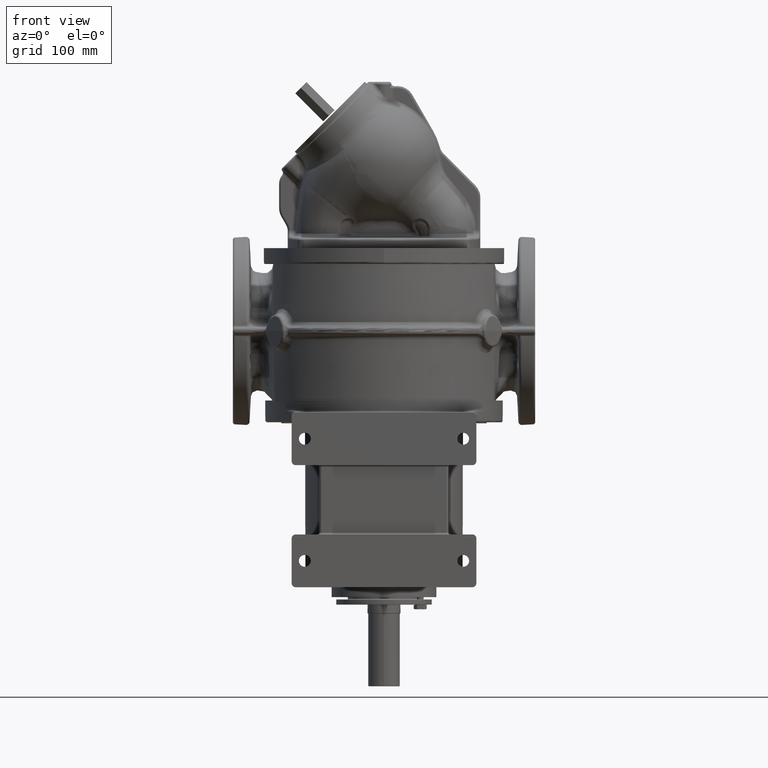
[diagram: clean part render]
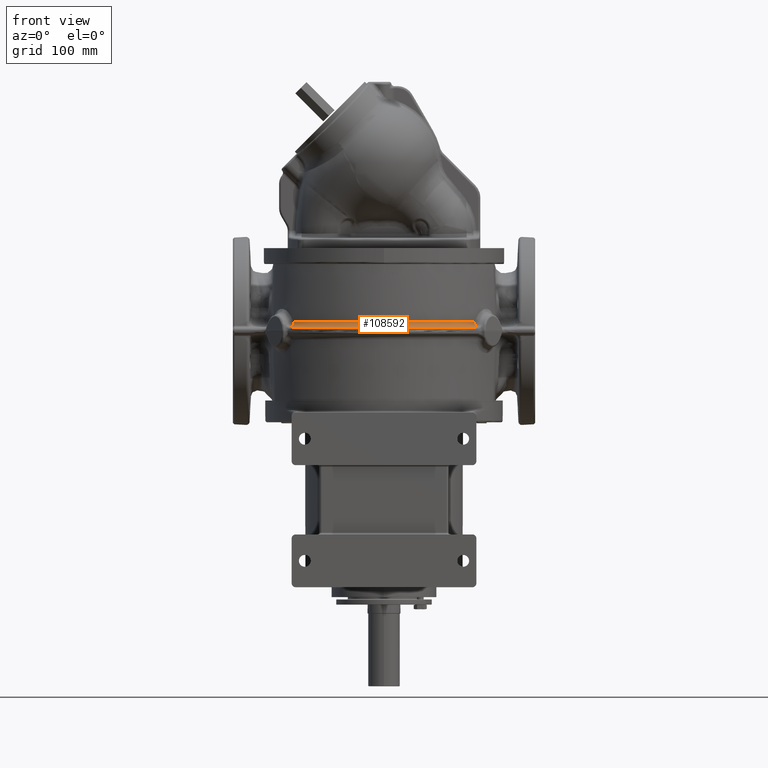
[diagram: same view with one face highlighted and labeled with its STEP entity id]
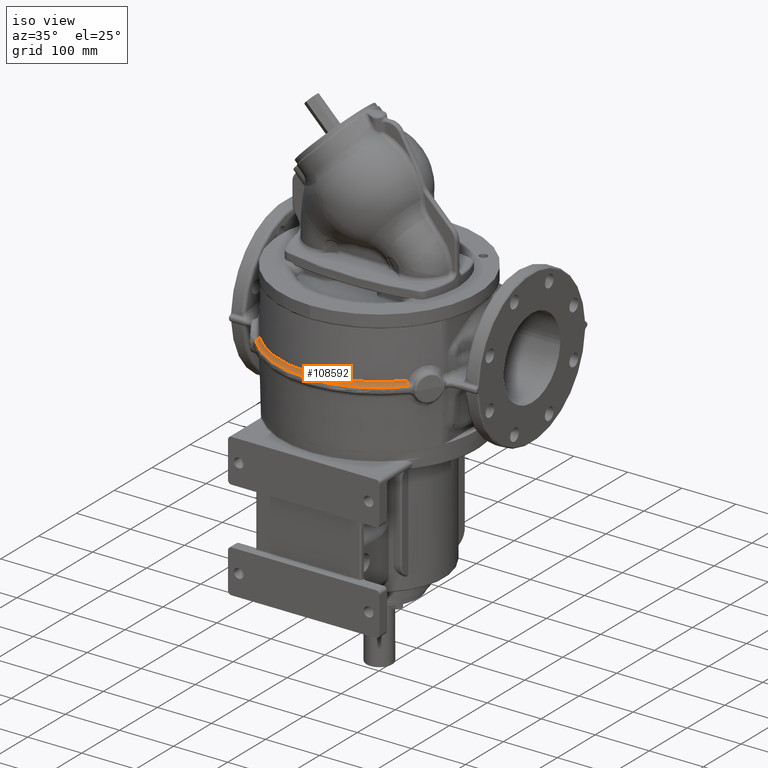
[diagram: same view with one face highlighted and labeled with its STEP entity id]
A machine part, front view. The second image highlights one B-rep face of the part: STEP entity #108592.
A second angle (iso view) of the same face is appended — the face is thin or edge-on in the first view.
In plain terms, the highlighted face is a freeform B-spline surface patch.
Its self-contained STEP definition (entity closure, byte-faithful):
#16138=CARTESIAN_POINT('',(1.370697317124E2,-1.208073383816E2,
1.309492199516E2));
#16147=CARTESIAN_POINT('',(-1.370697317100E2,-1.208073383843E2,
1.309492199509E2));
#16148=CARTESIAN_POINT('',(-1.363978214847E2,-1.215634289459E2,
1.309492127501E2));
#16149=CARTESIAN_POINT('',(-1.350414519589E2,-1.230645694003E2,
1.309492037074E2));
#16150=CARTESIAN_POINT('',(-1.329697115072E2,-1.252824869833E2,
1.309491985881E2));
#16151=CARTESIAN_POINT('',(-1.308614103834E2,-1.274659615623E2,
1.309491992841E2));
#16152=CARTESIAN_POINT('',(-1.287171470537E2,-1.296143510876E2,
1.309492028197E2));
#16153=CARTESIAN_POINT('',(-1.265375434012E2,-1.317270259575E2,
1.309492073035E2));
#16154=CARTESIAN_POINT('',(-1.243232306973E2,-1.338033683756E2,
1.309492115522E2));
#16155=CARTESIAN_POINT('',(-1.220748512586E2,-1.358427744529E2,
1.309492151556E2));
#16156=CARTESIAN_POINT('',(-1.197930615563E2,-1.378446502752E2,
1.309492185752E2));
#16157=CARTESIAN_POINT('',(-1.174785132483E2,-1.398084293309E2,
1.309492226564E2));
#16158=CARTESIAN_POINT('',(-1.151317656843E2,-1.417336397912E2,
1.309492260706E2));
#16159=CARTESIAN_POINT('',(-1.127533954402E2,-1.436198047958E2,
1.309492281496E2));
#16160=CARTESIAN_POINT('',(-1.103439748809E2,-1.454664612338E2,
1.309492285953E2));
#16161=CARTESIAN_POINT('',(-1.079041122981E2,-1.472731280450E2,
1.309492275536E2));
#16162=CARTESIAN_POINT('',(-1.054345418572E2,-1.490392483084E2,
1.309492256258E2));
#16163=CARTESIAN_POINT('',(-1.029359931935E2,-1.507642925907E2,
1.309492237598E2));
#16164=CARTESIAN_POINT('',(-1.004092135045E2,-1.524477416101E2,
1.309492236728E2));
#16165=CARTESIAN_POINT('',(-9.785494447904E1,-1.540891022949E2,
1.309492261486E2));
#16166=CARTESIAN_POINT('',(-9.527390323127E1,-1.556879171211E2,
1.309492290496E2));
#16167=CARTESIAN_POINT('',(-9.266681990714E1,-1.572437380462E2,
1.309492313015E2));
#16168=CARTESIAN_POINT('',(-9.003443710803E1,-1.587561277996E2,
1.309492322127E2));
#16169=CARTESIAN_POINT('',(-8.737748243150E1,-1.602246753725E2,
1.309492316473E2));
#16170=CARTESIAN_POINT('',(-8.469664865936E1,-1.616490034706E2,
1.309492300185E2));
#16171=CARTESIAN_POINT('',(-8.199264134541E1,-1.630287404530E2,
1.309492281425E2));
#16172=CARTESIAN_POINT('',(-7.926616489504E1,-1.643635279734E2,
1.309492278166E2));
#16173=CARTESIAN_POINT('',(-7.651794267206E1,-1.656530109964E2,
1.309492292719E2));
#16174=CARTESIAN_POINT('',(-7.374872228027E1,-1.668968371576E2,
1.309492307071E2));
#16175=CARTESIAN_POINT('',(-7.095925517911E1,-1.680946670660E2,
1.309492313288E2));
#16176=CARTESIAN_POINT('',(-6.815029713401E1,-1.692461738121E2,
1.309492307106E2));
#16177=CARTESIAN_POINT('',(-6.532262215990E1,-1.703510375731E2,
1.309492289549E2));
#16178=CARTESIAN_POINT('',(-6.247702109493E1,-1.714089475238E2,
1.309492266975E2));
#16179=CARTESIAN_POINT('',(-5.961428655026E1,-1.724196080332E2,
1.309492249272E2));
#16180=CARTESIAN_POINT('',(-5.673521731764E1,-1.733827368795E2,
1.309492256942E2));
#16181=CARTESIAN_POINT('',(-5.384060692383E1,-1.742980690342E2,
1.309492285012E2));
#16182=CARTESIAN_POINT('',(-5.093124923255E1,-1.751653540074E2,
1.309492314770E2));
#16183=CARTESIAN_POINT('',(-4.800794419213E1,-1.759843539003E2,
1.309492336915E2));
#16184=CARTESIAN_POINT('',(-4.507149670947E1,-1.767548439506E2,
1.309492346081E2));
#16185=CARTESIAN_POINT('',(-4.212271014854E1,-1.774766141514E2,
1.309492342217E2));
#16186=CARTESIAN_POINT('',(-3.916238847824E1,-1.781494682960E2,
1.309492330600E2));
#16187=CARTESIAN_POINT('',(-3.619133874644E1,-1.787732232934E2,
1.309492320385E2));
#16188=CARTESIAN_POINT('',(-3.321036878921E1,-1.793477095613E2,
1.309492330302E2));
#16189=CARTESIAN_POINT('',(-3.022029235526E1,-1.798727701273E2,
1.309492350243E2));
#16190=CARTESIAN_POINT('',(-2.722192831010E1,-1.803482609832E2,
1.309492365546E2));
#16191=CARTESIAN_POINT('',(-2.421609849404E1,-1.807740515552E2,
1.309492369003E2));
#16192=CARTESIAN_POINT('',(-2.120362724257E1,-1.811500248248E2,
1.309492357825E2));
#16193=CARTESIAN_POINT('',(-1.818534246807E1,-1.814760772736E2,
1.309492334423E2));
#16194=CARTESIAN_POINT('',(-1.516207359400E1,-1.817521192188E2,
1.309492306388E2));
#16195=CARTESIAN_POINT('',(-1.213465055007E1,-1.819780748749E2,
1.309492285758E2));
#16196=CARTESIAN_POINT('',(-9.103902999553E0,-1.821538823242E2,
1.309492291826E2));
#16197=CARTESIAN_POINT('',(-6.070659696204E0,-1.822794935598E2,
1.309492309219E2));
#16198=CARTESIAN_POINT('',(-3.035751553471E0,-1.823548741657E2,
1.309492324636E2));
#16199=CARTESIAN_POINT('',(-1.082630360039E-5,-1.823800034522E2,
1.309492330618E2));
#16200=CARTESIAN_POINT('',(3.035729534121E0,-1.823548745267E2,
1.309492324559E2));
#16201=CARTESIAN_POINT('',(6.070636748731E0,-1.822794943141E2,
1.309492309042E2));
#16202=CARTESIAN_POINT('',(9.103878733755E0,-1.821538835232E2,
1.309492291525E2));
#16203=CARTESIAN_POINT('',(1.213462473858E1,-1.819780765794E2,
1.309492285221E2));
#16204=CARTESIAN_POINT('',(1.516204618928E1,-1.817521214861E2,
1.309492305740E2));
#16205=CARTESIAN_POINT('',(1.818531371399E1,-1.814760801345E2,
1.309492333877E2));
#16206=CARTESIAN_POINT('',(2.120359764727E1,-1.811500282680E2,
1.309492357487E2));
#16207=CARTESIAN_POINT('',(2.421606885175E1,-1.807740555066E2,
1.309492368930E2));
#16208=CARTESIAN_POINT('',(2.722189959588E1,-1.803482652998E2,
1.309492365733E2));
#16209=CARTESIAN_POINT('',(3.022026521557E1,-1.798727746702E2,
1.309492350620E2));
#16210=CARTESIAN_POINT('',(3.321034359503E1,-1.793477142103E2,
1.309492330764E2));
#16211=CARTESIAN_POINT('',(3.619131557624E1,-1.787732279676E2,
1.309492320698E2));
#16212=CARTESIAN_POINT('',(3.916236712056E1,-1.781494729733E2,
1.309492330800E2));
#16213=CARTESIAN_POINT('',(4.212269028790E1,-1.774766188453E2,
1.309492342389E2));
#16214=CARTESIAN_POINT('',(4.507147792623E1,-1.767548487169E2,
1.309492346273E2));
#16215=CARTESIAN_POINT('',(4.800792592188E1,-1.759843588562E2,
1.309492337151E2));
#16216=CARTESIAN_POINT('',(5.093123095293E1,-1.751653592897E2,
1.309492315045E2));
#16217=CARTESIAN_POINT('',(5.384058841232E1,-1.742980747166E2,
1.309492285288E2));
#16218=CARTESIAN_POINT('',(5.673519858026E1,-1.733827429734E2,
1.309492257156E2));
#16219=CARTESIAN_POINT('',(5.961426786298E1,-1.724196144581E2,
1.309492249275E2));
#16220=CARTESIAN_POINT('',(6.247700286434E1,-1.714089541333E2,
1.309492266862E2));
#16221=CARTESIAN_POINT('',(6.532260446902E1,-1.703510443203E2,
1.309492289379E2));
#16222=CARTESIAN_POINT('',(6.815027981898E1,-1.692461807448E2,
1.309492306910E2));
#16223=CARTESIAN_POINT('',(7.095923779742E1,-1.680946743575E2,
1.309492313070E2));
#16224=CARTESIAN_POINT('',(7.374870412543E1,-1.668968451252E2,
1.309492306812E2));
#16225=CARTESIAN_POINT('',(7.651792319149E1,-1.656530199307E2,
1.309492292378E2));
#16226=CARTESIAN_POINT('',(7.926614363050E1,-1.643635381537E2,
1.309492277694E2));
#16227=CARTESIAN_POINT('',(8.199261791435E1,-1.630287521503E2,
1.309492280738E2));
#16228=CARTESIAN_POINT('',(8.469662272714E1,-1.616490169580E2,
1.309492299552E2));
#16229=CARTESIAN_POINT('',(8.737745424949E1,-1.602246906318E2,
1.309492316042E2));
#16230=CARTESIAN_POINT('',(9.003440735933E1,-1.587561445561E2,
1.309492321992E2));
#16231=CARTESIAN_POINT('',(9.266678984614E1,-1.572437556507E2,
1.309492313201E2));
#16232=CARTESIAN_POINT('',(9.527387441126E1,-1.556879346544E2,
1.309492290958E2));
#16233=CARTESIAN_POINT('',(9.785491772224E1,-1.540891191906E2,
1.309492262116E2));
#16234=CARTESIAN_POINT('',(1.004091891410E2,-1.524477575659E2,
1.309492237341E2));
#16235=CARTESIAN_POINT('',(1.029359709795E2,-1.507643076711E2,
1.309492237968E2));
#16236=CARTESIAN_POINT('',(1.054345218455E2,-1.490392623866E2,
1.309492256490E2));
#16237=CARTESIAN_POINT('',(1.079040945966E2,-1.472731409450E2,
1.309492275665E2));
#16238=CARTESIAN_POINT('',(1.103439597361E2,-1.454664726652E2,
1.309492286023E2));
#16239=CARTESIAN_POINT('',(1.127533830346E2,-1.436198144889E2,
1.309492281538E2));
#16240=CARTESIAN_POINT('',(1.151317555630E2,-1.417336479734E2,
1.309492260737E2));
#16241=CARTESIAN_POINT('',(1.174785051954E2,-1.398084360666E2,
1.309492226588E2));
#16242=CARTESIAN_POINT('',(1.197930553434E2,-1.378446556519E2,
1.309492185746E2));
#16243=CARTESIAN_POINT('',(1.220748468518E2,-1.358427784023E2,
1.309492151505E2));
#16244=CARTESIAN_POINT('',(1.243232281858E2,-1.338033707107E2,
1.309492115473E2));
#16245=CARTESIAN_POINT('',(1.265375426186E2,-1.317270267204E2,
1.309492073002E2));
#16246=CARTESIAN_POINT('',(1.287171476870E2,-1.296143504772E2,
1.309492028185E2));
#16247=CARTESIAN_POINT('',(1.308614119574E2,-1.274659599656E2,
1.309491992850E2));
#16248=CARTESIAN_POINT('',(1.329697134027E2,-1.252824849910E2,
1.309491985903E2));
#16249=CARTESIAN_POINT('',(1.350414534269E2,-1.230645677790E2,
1.309492037092E2));
#16250=CARTESIAN_POINT('',(1.363978220804E2,-1.215634283044E2,
1.309492127520E2));
#16251=CARTESIAN_POINT('',(1.370697317124E2,-1.208073383816E2,
1.309492199516E2));
#24702=CARTESIAN_POINT('',(1.408077788543E2,-1.241289357756E2,
1.231980652818E2));
#24703=CARTESIAN_POINT('',(1.401243757431E2,-1.248979634409E2,
1.231980511170E2));
#24704=CARTESIAN_POINT('',(1.387445676559E2,-1.264252439435E2,
1.231980288590E2));
#24705=CARTESIAN_POINT('',(1.366368156829E2,-1.286827320679E2,
1.231979913848E2));
#24706=CARTESIAN_POINT('',(1.344918467958E2,-1.309058899747E2,
1.231979622160E2));
#24707=CARTESIAN_POINT('',(1.323105400611E2,-1.330937872360E2,
1.231979455755E2));
#24708=CARTESIAN_POINT('',(1.300937950229E2,-1.352455040302E2,
1.231979504658E2));
#24709=CARTESIAN_POINT('',(1.278424689771E2,-1.373602062909E2,
1.231979819872E2));
#24710=CARTESIAN_POINT('',(1.255570998439E2,-1.394374322636E2,
1.231980231523E2));
#24711=CARTESIAN_POINT('',(1.232382763812E2,-1.414766535755E2,
1.231980578953E2));
#24712=CARTESIAN_POINT('',(1.208864690553E2,-1.434774427394E2,
1.231980705202E2));
#24713=CARTESIAN_POINT('',(1.185020457724E2,-1.454395113132E2,
1.231980727801E2));
#24714=CARTESIAN_POINT('',(1.160853240516E2,-1.473625709123E2,
1.231980776813E2));
#24715=CARTESIAN_POINT('',(1.136371573135E2,-1.492459397908E2,
1.231980829715E2));
#24716=CARTESIAN_POINT('',(1.111584965740E2,-1.510888968501E2,
1.231980849801E2));
#24717=CARTESIAN_POINT('',(1.086503256613E2,-1.528907288024E2,
1.231980821474E2));
#24718=CARTESIAN_POINT('',(1.061131919732E2,-1.546510527733E2,
1.231980745112E2));
#24719=CARTESIAN_POINT('',(1.035475714171E2,-1.563695181119E2,
1.231980623179E2));
#24720=CARTESIAN_POINT('',(1.009539305902E2,-1.580457642674E2,
1.231980521479E2));
#24721=CARTESIAN_POINT('',(9.833305353793E1,-1.596793199855E2,
1.231980459378E2));
#24722=CARTESIAN_POINT('',(9.568575777352E1,-1.612697048881E2,
1.231980417167E2));
#24723=CARTESIAN_POINT('',(9.301287666467E1,-1.628164382084E2,
1.231980396137E2));
#24724=CARTESIAN_POINT('',(9.031514706703E1,-1.643191026152E2,
1.231980404041E2));
#24725=CARTESIAN_POINT('',(8.759321527131E1,-1.657773295461E2,
1.231980453612E2));
#24726=CARTESIAN_POINT('',(8.484774155669E1,-1.671907349024E2,
1.231980582800E2));
#24727=CARTESIAN_POINT('',(8.207939150130E1,-1.685589353448E2,
1.231980773139E2));
#24728=CARTESIAN_POINT('',(7.928889692113E1,-1.698815790412E2,
1.231980830422E2));
#24729=CARTESIAN_POINT('',(7.647700261455E1,-1.711583486460E2,
1.231980800268E2));
#24730=CARTESIAN_POINT('',(7.364443102073E1,-1.723889302988E2,
1.231980704445E2));
#24731=CARTESIAN_POINT('',(7.079200414837E1,-1.735729675379E2,
1.231980583263E2));
#24732=CARTESIAN_POINT('',(6.792068430839E1,-1.747100550666E2,
1.231980487671E2));
#24733=CARTESIAN_POINT('',(6.503138274312E1,-1.757998227105E2,
1.231980467726E2));
#24734=CARTESIAN_POINT('',(6.212513393563E1,-1.768418643105E2,
1.231980625561E2));
#24735=CARTESIAN_POINT('',(5.920226411571E1,-1.778360767658E2,
1.231980813009E2));
#24736=CARTESIAN_POINT('',(5.626285305745E1,-1.787824362952E2,
1.231980869390E2));
#24737=CARTESIAN_POINT('',(5.330691270579E1,-1.796809147894E2,
1.231980840663E2));
#24738=CARTESIAN_POINT('',(5.033611696491E1,-1.805309627628E2,
1.231980748061E2));
#24739=CARTESIAN_POINT('',(4.735238879580E1,-1.813320373782E2,
1.231980630831E2));
#24740=CARTESIAN_POINT('',(4.435752893436E1,-1.820837106957E2,
1.231980536835E2));
#24741=CARTESIAN_POINT('',(4.135168739870E1,-1.827859954878E2,
1.231980515866E2));
#24742=CARTESIAN_POINT('',(3.833505849397E1,-1.834388392339E2,
1.231980654082E2));
#24743=CARTESIAN_POINT('',(3.530785131089E1,-1.840421596066E2,
1.231980937895E2));
#24744=CARTESIAN_POINT('',(3.227043390850E1,-1.845958891225E2,
1.231981156646E2));
#24745=CARTESIAN_POINT('',(2.922314842081E1,-1.850999630979E2,
1.231981313048E2));
#24746=CARTESIAN_POINT('',(2.616635990517E1,-1.855542699576E2,
1.231981380867E2));
#24747=CARTESIAN_POINT('',(2.310202016280E1,-1.859584744460E2,
1.231981356308E2));
#24748=CARTESIAN_POINT('',(2.003201887048E1,-1.863123276566E2,
1.231981245382E2));
#24749=CARTESIAN_POINT('',(1.695844697380E1,-1.866156375300E2,
1.231981063886E2));
#24750=CARTESIAN_POINT('',(1.388178577978E1,-1.868684180761E2,
1.231980849786E2));
#24751=CARTESIAN_POINT('',(1.080217292642E1,-1.870706695482E2,
1.231980612276E2));
#24752=CARTESIAN_POINT('',(7.719810368971E0,-1.872223595229E2,
1.231980543891E2));
#24753=CARTESIAN_POINT('',(4.634992385910E0,-1.873234972388E2,
1.231980709121E2));
#24754=CARTESIAN_POINT('',(1.548133390609E0,-1.873740884202E2,
1.231980969997E2));
#24755=CARTESIAN_POINT('',(-1.540489121716E0,-1.873741032412E2,
1.231981249861E2));
#24756=CARTESIAN_POINT('',(-4.630115816696E0,-1.873234833344E2,
1.231981470522E2));
#24757=CARTESIAN_POINT('',(-7.718830438860E0,-1.872222155611E2,
1.231981566878E2));
#24758=CARTESIAN_POINT('',(-1.080489567393E1,-1.870703518965E2,
1.231981492857E2));
#24759=CARTESIAN_POINT('',(-1.388655159895E1,-1.868680039712E2,
1.231981185718E2));
#24760=CARTESIAN_POINT('',(-1.696348883424E1,-1.866152437180E2,
1.231980738893E2));
#24761=CARTESIAN_POINT('',(-2.003536944788E1,-1.863121332889E2,
1.231980362008E2));
#24762=CARTESIAN_POINT('',(-2.310187172057E1,-1.859586873855E2,
1.231980296407E2));
#24763=CARTESIAN_POINT('',(-2.616257648551E1,-1.855549649220E2,
1.231980486879E2));
#24764=CARTESIAN_POINT('',(-2.921698973482E1,-1.851010337988E2,
1.231980780478E2));
#24765=CARTESIAN_POINT('',(-3.226476138118E1,-1.845969052020E2,
1.231981058709E2));
#24766=CARTESIAN_POINT('',(-3.530451911432E1,-1.840427550870E2,
1.231981213525E2));
#24767=CARTESIAN_POINT('',(-3.833463978012E1,-1.834388451581E2,
1.231981119570E2));
#24768=CARTESIAN_POINT('',(-4.135345569684E1,-1.827855422539E2,
1.231980824557E2));
#24769=CARTESIAN_POINT('',(-4.436037058168E1,-1.820830348772E2,
1.231980484933E2));
#24770=CARTESIAN_POINT('',(-4.735504200990E1,-1.813314240765E2,
1.231980235781E2));
#24771=CARTESIAN_POINT('',(-5.033709707073E1,-1.805307803324E2,
1.231980260341E2));
#24772=CARTESIAN_POINT('',(-5.330577696858E1,-1.796813164316E2,
1.231980466907E2));
#24773=CARTESIAN_POINT('',(-5.626023499992E1,-1.787832845139E2,
1.231980711320E2));
#24774=CARTESIAN_POINT('',(-5.919964894826E1,-1.778369310761E2,
1.231980880967E2));
#24775=CARTESIAN_POINT('',(-6.212318811908E1,-1.768425026E2,1.231980840441E2));
#24776=CARTESIAN_POINT('',(-6.503005985501E1,-1.758002745701E2,
1.231980640396E2));
#24777=CARTESIAN_POINT('',(-6.791947798694E1,-1.747105377216E2,
1.231980411720E2));
#24778=CARTESIAN_POINT('',(-7.079065454816E1,-1.735735800284E2,
1.231980279904E2));
#24779=CARTESIAN_POINT('',(-7.364280332855E1,-1.723896931249E2,
1.231980374494E2));
#24780=CARTESIAN_POINT('',(-7.647516730716E1,-1.711592152865E2,
1.231980567887E2));
#24781=CARTESIAN_POINT('',(-7.928699022502E1,-1.698824824100E2,
1.231980749220E2));
#24782=CARTESIAN_POINT('',(-8.207751081259E1,-1.685598353396E2,
1.231980822473E2));
#24783=CARTESIAN_POINT('',(-8.484599665024E1,-1.671915946885E2,
1.231980676784E2));
#24784=CARTESIAN_POINT('',(-8.759175058153E1,-1.657781094678E2,
1.231980413442E2));
#24785=CARTESIAN_POINT('',(-9.031407539753E1,-1.643197366417E2,
1.231980203524E2));
#24786=CARTESIAN_POINT('',(-9.301226206752E1,-1.628168381093E2,
1.231980188907E2));
#24787=CARTESIAN_POINT('',(-9.568550544994E1,-1.612698867923E2,
1.231980285460E2));
#24788=CARTESIAN_POINT('',(-9.833301059602E1,-1.596793538180E2,
1.231980433948E2));
#24789=CARTESIAN_POINT('',(-1.009539850764E2,-1.580457173664E2,
1.231980577791E2));
#24790=CARTESIAN_POINT('',(-1.035477248884E2,-1.563694058606E2,
1.231980675701E2));
#24791=CARTESIAN_POINT('',(-1.061135227815E2,-1.546508453460E2,
1.231980674387E2));
#24792=CARTESIAN_POINT('',(-1.086507029161E2,-1.528904858786E2,
1.231980723440E2));
#24793=CARTESIAN_POINT('',(-1.111587022743E2,-1.510887579426E2,
1.231980791664E2));
#24794=CARTESIAN_POINT('',(-1.136369746690E2,-1.492460721680E2,
1.231980838982E2));
#24795=CARTESIAN_POINT('',(-1.160849111314E2,-1.473628746763E2,
1.231980846961E2));
#24796=CARTESIAN_POINT('',(-1.185016304164E2,-1.454398281710E2,
1.231980805600E2));
#24797=CARTESIAN_POINT('',(-1.208862358488E2,-1.434776308701E2,
1.231980736201E2));
#24798=CARTESIAN_POINT('',(-1.232380851580E2,-1.414768123029E2,
1.231980602642E2));
#24799=CARTESIAN_POINT('',(-1.255568979252E2,-1.394376064003E2,
1.231980253586E2));
#24800=CARTESIAN_POINT('',(-1.278423043169E2,-1.373603533069E2,
1.231979838481E2));
#24801=CARTESIAN_POINT('',(-1.300936672024E2,-1.352456261288E2,
1.231979501721E2));
#24802=CARTESIAN_POINT('',(-1.323103579181E2,-1.330939805886E2,
1.231979403286E2));
#24803=CARTESIAN_POINT('',(-1.344916245457E2,-1.309061312558E2,
1.231979568720E2));
#24804=CARTESIAN_POINT('',(-1.366365852311E2,-1.286829851779E2,
1.231979878284E2));
#24805=CARTESIAN_POINT('',(-1.387443835867E2,-1.264254485195E2,
1.231980276795E2));
#24806=CARTESIAN_POINT('',(-1.401242909385E2,-1.248980589032E2,
1.231980512166E2));
#24807=CARTESIAN_POINT('',(-1.408077494179E2,-1.241289689320E2,
1.231980652707E2));
#24809=CARTESIAN_POINT('',(-1.437931145376E2,-1.267820729235E2,
1.312633386271E2));
#24810=DIRECTION('',(6.642646417330E-1,-7.474974820983E-1,-1.171910529167E-7));
#24811=DIRECTION('',(3.317157475E-1,2.947797851727E-1,-8.961414738277E-1));
#24812=AXIS2_PLACEMENT_3D('',#24809,#24810,#24811);
#24861=CARTESIAN_POINT('',(1.408077788543E2,-1.241289357756E2,
1.231980652818E2));
#24863=CARTESIAN_POINT('',(1.408077788543E2,-1.241289357756E2,
1.231980652818E2));
#24864=CARTESIAN_POINT('',(1.407380226228E2,-1.240669432307E2,
1.232442782762E2));
#24865=CARTESIAN_POINT('',(1.405996081537E2,-1.239441389901E2,
1.233399436344E2));
#24866=CARTESIAN_POINT('',(1.403960264475E2,-1.237631339344E2,
1.234929885482E2));
#24867=CARTESIAN_POINT('',(1.401964856496E2,-1.235858250746E2,
1.236553953631E2));
#24868=CARTESIAN_POINT('',(1.400012916426E2,-1.234123519023E2,
1.238269685587E2));
#24869=CARTESIAN_POINT('',(1.398106620514E2,-1.232429433215E2,
1.240075013723E2));
#24870=CARTESIAN_POINT('',(1.396248312472E2,-1.230777981401E2,
1.241967762973E2));
#24871=CARTESIAN_POINT('',(1.394440218599E2,-1.229171167795E2,
1.243945652792E2));
#24872=CARTESIAN_POINT('',(1.392684520665E2,-1.227610924703E2,
1.246006300086E2));
#24873=CARTESIAN_POINT('',(1.390983332998E2,-1.226099133029E2,
1.248147222136E2));
#24874=CARTESIAN_POINT('',(1.389338705427E2,-1.224637613995E2,
1.250365839508E2));
#24875=CARTESIAN_POINT('',(1.387752619330E2,-1.223228128589E2,
1.252659479165E2));
#24876=CARTESIAN_POINT('',(1.386226985717E2,-1.221872374980E2,
1.255025377649E2));
#24877=CARTESIAN_POINT('',(1.384763642786E2,-1.220571986598E2,
1.257460684418E2));
#24878=CARTESIAN_POINT('',(1.383364353699E2,-1.219328530139E2,
1.259962465309E2));
#24879=CARTESIAN_POINT('',(1.382030804471E2,-1.218143503667E2,
1.262527706068E2));
#24880=CARTESIAN_POINT('',(1.380764601971E2,-1.217018334757E2,
1.265153316006E2));
#24881=CARTESIAN_POINT('',(1.379567271947E2,-1.215954378847E2,
1.267836131694E2));
#24882=CARTESIAN_POINT('',(1.378440257191E2,-1.214952917594E2,
1.270572920783E2));
#24883=CARTESIAN_POINT('',(1.377384915806E2,-1.214015157335E2,
1.273360385888E2));
#24884=CARTESIAN_POINT('',(1.376402519582E2,-1.213142227610E2,
1.276195168565E2));
#24885=CARTESIAN_POINT('',(1.375494252454E2,-1.212335179814E2,
1.279073853360E2));
#24886=CARTESIAN_POINT('',(1.374661209108E2,-1.211594985889E2,
1.281992971927E2));
#24887=CARTESIAN_POINT('',(1.373904393692E2,-1.210922537123E2,
1.284949007203E2));
#24888=CARTESIAN_POINT('',(1.373224718539E2,-1.210318643152E2,
1.287938397647E2));
#24889=CARTESIAN_POINT('',(1.372623003106E2,-1.209784030940E2,
1.290957541532E2));
#24890=CARTESIAN_POINT('',(1.372099972590E2,-1.209319344351E2,
1.294002801280E2));
#24891=CARTESIAN_POINT('',(1.371656257539E2,-1.208925142829E2,
1.297070507848E2));
#24892=CARTESIAN_POINT('',(1.371292393162E2,-1.208601900641E2,
1.300156965151E2));
#24893=CARTESIAN_POINT('',(1.371008818591E2,-1.208350006415E2,
1.303258454508E2));
#24894=CARTESIAN_POINT('',(1.370805876657E2,-1.208169762326E2,
1.306371239135E2));
#24895=CARTESIAN_POINT('',(1.370724500450E2,-1.208097510778E2,
1.308451458782E2));
#24896=CARTESIAN_POINT('',(1.370697317124E2,-1.208073383816E2,
1.309492199516E2));
#67698=VERTEX_POINT('',#16138);
#67699=VERTEX_POINT('',#16147);
#67718=VERTEX_POINT('',#24861);
#67721=VERTEX_POINT('',#24807);
#108511=CARTESIAN_POINT('',(-1.430328653555E2,-1.218475825554E2,
1.231139056128E2));
#108512=CARTESIAN_POINT('',(-1.423415423586E2,-1.226525592139E2,
1.231138895965E2));
#108513=CARTESIAN_POINT('',(-1.362712501623E2,-1.296007968552E2,
1.231138027787E2));
#108514=CARTESIAN_POINT('',(-1.238647938075E2,-1.418574445789E2,
1.231138918538E2));
#108515=CARTESIAN_POINT('',(-1.043141381301E2,-1.566988646685E2,
1.231138608702E2));
#108516=CARTESIAN_POINT('',(-8.301028603032E1,-1.688813520924E2,
1.231138745764E2));
#108517=CARTESIAN_POINT('',(-6.030965776748E1,-1.782014410444E2,
1.231138605934E2));
#108518=CARTESIAN_POINT('',(-3.659262127021E1,-1.845030895404E2,
1.231138752825E2));
#108519=CARTESIAN_POINT('',(-1.225728575571E1,-1.876800883389E2,
1.231138655353E2));
#108520=CARTESIAN_POINT('',(1.228257297717E1,-1.876784499603E2,
1.231138654203E2));
#108521=CARTESIAN_POINT('',(3.661531945816E1,-1.844984649909E2,
1.231138753558E2));
#108522=CARTESIAN_POINT('',(6.033209673358E1,-1.781939191924E2,
1.231138606148E2));
#108523=CARTESIAN_POINT('',(8.303135259977E1,-1.688711984535E2,
1.231138744626E2));
#108524=CARTESIAN_POINT('',(1.043308815534E2,-1.566873358829E2,
1.231138609922E2));
#108525=CARTESIAN_POINT('',(1.238730060827E2,-1.418496197601E2,
1.231138917793E2));
#108526=CARTESIAN_POINT('',(1.362731698256E2,-1.295985757578E2,
1.231138028134E2));
#108527=CARTESIAN_POINT('',(1.423412569122E2,-1.226528858167E2,
1.231138895920E2));
#108528=CARTESIAN_POINT('',(1.430324413732E2,-1.218480760363E2,
1.231139056022E2));
#108529=CARTESIAN_POINT('',(-1.405973966241E2,-1.197558429753E2,
1.246184496881E2));
#108530=CARTESIAN_POINT('',(-1.399178498612E2,-1.205471072901E2,
1.246184347063E2));
#108531=CARTESIAN_POINT('',(-1.339509543876E2,-1.273769945835E2,
1.246183497293E2));
#108532=CARTESIAN_POINT('',(-1.217557097618E2,-1.394249891632E2,
1.246184394951E2));
#108533=CARTESIAN_POINT('',(-1.025379534765E2,-1.540136910579E2,
1.246184108419E2));
#108534=CARTESIAN_POINT('',(-8.159685523009E1,-1.659887424576E2,
1.246184260170E2));
#108535=CARTESIAN_POINT('',(-5.928275027720E1,-1.751501393725E2,
1.246184132363E2));
#108536=CARTESIAN_POINT('',(-3.596954603648E1,-1.813444883175E2,
1.246184287023E2));
#108537=CARTESIAN_POINT('',(-1.204858475276E1,-1.844673910384E2,
1.246184193487E2));
#108538=CARTESIAN_POINT('',(1.207344135340E1,-1.844657805669E2,
1.246184192335E2));
#108539=CARTESIAN_POINT('',(3.599185784355E1,-1.813399424880E2,
1.246184287750E2));
#108540=CARTESIAN_POINT('',(5.930480708704E1,-1.751427456226E2,
1.246184132568E2));
#108541=CARTESIAN_POINT('',(8.161756314689E1,-1.659787616835E2,
1.246184259017E2));
#108542=CARTESIAN_POINT('',(1.025544117865E2,-1.540023585855E2,
1.246184109626E2));
#108543=CARTESIAN_POINT('',(1.217637822066E2,-1.394172975744E2,
1.246184394187E2));
#108544=CARTESIAN_POINT('',(1.339528413362E2,-1.273748113374E2,
1.246183497659E2));
#108545=CARTESIAN_POINT('',(1.399175692819E2,-1.205474283242E2,
1.246184347013E2));
#108546=CARTESIAN_POINT('',(1.405969798714E2,-1.197563280415E2,
1.246184496770E2));
#108547=CARTESIAN_POINT('',(-1.391392443185E2,-1.185035221811E2,
1.275977134562E2));
#108548=CARTESIAN_POINT('',(-1.384667549644E2,-1.192865686532E2,
1.275977002792E2));
#108549=CARTESIAN_POINT('',(-1.325618149413E2,-1.260455411120E2,
1.275976175244E2));
#108550=CARTESIAN_POINT('',(-1.204929738675E2,-1.379686750907E2,
1.275977064423E2));
#108551=CARTESIAN_POINT('',(-1.014745348598E2,-1.524060591262E2,
1.275976796601E2));
#108552=CARTESIAN_POINT('',(-8.075063130964E1,-1.642569145082E2,
1.275976955872E2));
#108553=CARTESIAN_POINT('',(-5.866793262278E1,-1.733233061050E2,
1.275976835606E2));
#108554=CARTESIAN_POINT('',(-3.559650090139E1,-1.794534142618E2,
1.275976994825E2));
#108555=CARTESIAN_POINT('',(-1.192364341282E1,-1.825439284973E2,
1.275976903669E2));
#108556=CARTESIAN_POINT('',(1.194824212850E1,-1.825423347480E2,
1.275976902515E2));
#108557=CARTESIAN_POINT('',(3.561858152914E1,-1.794489155297E2,
1.275976995548E2));
#108558=CARTESIAN_POINT('',(5.868976051692E1,-1.733159890867E2,
1.275976835805E2));
#108559=CARTESIAN_POINT('',(8.077112457270E1,-1.642470371962E2,
1.275976954710E2));
#108560=CARTESIAN_POINT('',(1.014908224438E2,-1.523948442017E2,
1.275976797804E2));
#108561=CARTESIAN_POINT('',(1.205009625978E2,-1.379610632605E2,
1.275977063637E2));
#108562=CARTESIAN_POINT('',(1.325636822642E2,-1.260433805729E2,
1.275976175649E2));
#108563=CARTESIAN_POINT('',(1.384664773083E2,-1.192868863425E2,
1.275977002730E2));
#108564=CARTESIAN_POINT('',(1.391388319085E2,-1.185040021924E2,
1.275977134442E2));
#108565=CARTESIAN_POINT('',(-1.391032095657E2,-1.184726335597E2,
1.311428893278E2));
#108566=CARTESIAN_POINT('',(-1.384309059723E2,-1.192554634964E2,
1.311428781751E2));
#108567=CARTESIAN_POINT('',(-1.325275809676E2,-1.260125888039E2,
1.311427973459E2));
#108568=CARTESIAN_POINT('',(-1.204617765789E2,-1.379327427459E2,
1.311428841362E2));
#108569=CARTESIAN_POINT('',(-1.014482721241E2,-1.523663679164E2,
1.311428581947E2));
#108570=CARTESIAN_POINT('',(-8.072975009755E1,-1.642141525810E2,
1.311428739276E2));
#108571=CARTESIAN_POINT('',(-5.865275145803E1,-1.732782064146E2,
1.311428619766E2));
#108572=CARTESIAN_POINT('',(-3.558728117693E1,-1.794067288357E2,
1.311428778946E2));
#108573=CARTESIAN_POINT('',(-1.192057438613E1,-1.824964421026E2,
1.311428687886E2));
#108574=CARTESIAN_POINT('',(1.194516661906E1,-1.824948487895E2,
1.311428686733E2));
#108575=CARTESIAN_POINT('',(3.560935634686E1,-1.794022312117E2,
1.311428779669E2));
#108576=CARTESIAN_POINT('',(5.867457350647E1,-1.732708913510E2,
1.311428619966E2));
#108577=CARTESIAN_POINT('',(8.075023818469E1,-1.642042777680E2,
1.311428738112E2));
#108578=CARTESIAN_POINT('',(1.014645554484E2,-1.523551559173E2,
1.311428583156E2));
#108579=CARTESIAN_POINT('',(1.204697632471E2,-1.379251328729E2,
1.311428840557E2));
#108580=CARTESIAN_POINT('',(1.325294477402E2,-1.260104289008E2,
1.311427973912E2));
#108581=CARTESIAN_POINT('',(1.384306284040E2,-1.192557810852E2,
1.311428781675E2));
#108582=CARTESIAN_POINT('',(1.391027972871E2,-1.184731134179E2,
1.311428893145E2));
#108583=(BOUNDED_SURFACE()B_SPLINE_SURFACE(3,3,((#108511,#108512,#108513,
#108514,#108515,#108516,#108517,#108518,#108519,#108520,#108521,#108522,#108523,
#108524,#108525,#108526,#108527,#108528),(#108529,#108530,#108531,#108532,
#108533,#108534,#108535,#108536,#108537,#108538,#108539,#108540,#108541,#108542,
#108543,#108544,#108545,#108546),(#108547,#108548,#108549,#108550,#108551,
#108552,#108553,#108554,#108555,#108556,#108557,#108558,#108559,#108560,#108561,
#108562,#108563,#108564),(#108565,#108566,#108567,#108568,#108569,#108570,
#108571,#108572,#108573,#108574,#108575,#108576,#108577,#108578,#108579,#108580,
#108581,#108582)),.UNSPECIFIED.,.F.,.F.,.F.)B_SPLINE_SURFACE_WITH_KNOTS((4,4),
(4,1,1,1,1,1,1,1,1,1,1,1,1,1,1,4),(0.E0,1.E0),(-1.000591669783E-2,0.E0,
7.698306348752E-2,1.539198143191E-1,2.308261360323E-1,3.077374347754E-1,
3.846656911656E-1,4.615746774032E-1,5.385043184134E-1,6.154140998185E-1,
6.923209981902E-1,7.692579690408E-1,8.461568979255E-1,9.230466294496E-1,1.E0,
1.010003875719E0),.UNSPECIFIED.)GEOMETRIC_REPRESENTATION_ITEM()RATIONAL_B_SPLINE_SURFACE(((1.082556972937E0,1.082556972937E0,1.082556972937E0,1.082556972937E0,
1.082556972937E0,1.082556972937E0,1.082556972937E0,1.082556972937E0,
1.082556972937E0,1.082556972937E0,1.082556972937E0,1.082556972937E0,
1.082556972937E0,1.082556972937E0,1.082556972937E0,1.082556972937E0,
1.082556972937E0,1.082556972937E0),(9.724810090209E-1,9.724810090209E-1,
9.724810090209E-1,9.724810090209E-1,9.724810090209E-1,9.724810090209E-1,
9.724810090209E-1,9.724810090209E-1,9.724810090209E-1,9.724810090209E-1,
9.724810090209E-1,9.724810090209E-1,9.724810090209E-1,9.724810090209E-1,
9.724810090209E-1,9.724810090209E-1,9.724810090209E-1,9.724810090209E-1),(
9.724810090209E-1,9.724810090209E-1,9.724810090209E-1,9.724810090209E-1,
9.724810090209E-1,9.724810090209E-1,9.724810090209E-1,9.724810090209E-1,
9.724810090209E-1,9.724810090209E-1,9.724810090209E-1,9.724810090209E-1,
9.724810090209E-1,9.724810090209E-1,9.724810090209E-1,9.724810090209E-1,
9.724810090209E-1,9.724810090209E-1),(1.082556972937E0,1.082556972937E0,
1.082556972937E0,1.082556972937E0,1.082556972937E0,1.082556972937E0,
1.082556972937E0,1.082556972937E0,1.082556972937E0,1.082556972937E0,
1.082556972937E0,1.082556972937E0,1.082556972937E0,1.082556972937E0,
1.082556972937E0,1.082556972937E0,1.082556972937E0,1.082556972937E0)))REPRESENTATION_ITEM('')SURFACE());
#108585=ORIENTED_EDGE('',*,*,#108584,.T.);
#108586=ORIENTED_EDGE('',*,*,#108506,.T.);
#108587=ORIENTED_EDGE('',*,*,#99316,.T.);
#108589=ORIENTED_EDGE('',*,*,#108588,.F.);
#108590=EDGE_LOOP('',(#108585,#108586,#108587,#108589));
#108591=FACE_OUTER_BOUND('',#108590,.F.);
#108592=ADVANCED_FACE('',(#108591),#108583,.F.);
#16252=B_SPLINE_CURVE_WITH_KNOTS('',3,(#16147,#16148,#16149,#16150,#16151,
#16152,#16153,#16154,#16155,#16156,#16157,#16158,#16159,#16160,#16161,#16162,
#16163,#16164,#16165,#16166,#16167,#16168,#16169,#16170,#16171,#16172,#16173,
#16174,#16175,#16176,#16177,#16178,#16179,#16180,#16181,#16182,#16183,#16184,
#16185,#16186,#16187,#16188,#16189,#16190,#16191,#16192,#16193,#16194,#16195,
#16196,#16197,#16198,#16199,#16200,#16201,#16202,#16203,#16204,#16205,#16206,
#16207,#16208,#16209,#16210,#16211,#16212,#16213,#16214,#16215,#16216,#16217,
#16218,#16219,#16220,#16221,#16222,#16223,#16224,#16225,#16226,#16227,#16228,
#16229,#16230,#16231,#16232,#16233,#16234,#16235,#16236,#16237,#16238,#16239,
#16240,#16241,#16242,#16243,#16244,#16245,#16246,#16247,#16248,#16249,#16250,
#16251),.UNSPECIFIED.,.F.,.F.,(4,1,1,1,1,1,1,1,1,1,1,1,1,1,1,1,1,1,1,1,1,1,1,1,
1,1,1,1,1,1,1,1,1,1,1,1,1,1,1,1,1,1,1,1,1,1,1,1,1,1,1,1,1,1,1,1,1,1,1,1,1,1,1,1,
1,1,1,1,1,1,1,1,1,1,1,1,1,1,1,1,1,1,1,1,1,1,1,1,1,1,1,1,1,1,1,1,1,1,1,1,1,1,4),(
0.E0,9.803921568627E-3,1.960784313725E-2,2.941176470588E-2,3.921568627451E-2,
4.901960784314E-2,5.882352941176E-2,6.862745098039E-2,7.843137254902E-2,
8.823529411765E-2,9.803921568627E-2,1.078431372549E-1,1.176470588235E-1,
1.274509803922E-1,1.372549019608E-1,1.470588235294E-1,1.568627450980E-1,
1.666666666667E-1,1.764705882353E-1,1.862745098039E-1,1.960784313725E-1,
2.058823529412E-1,2.156862745098E-1,2.254901960784E-1,2.352941176471E-1,
2.450980392157E-1,2.549019607843E-1,2.647058823529E-1,2.745098039216E-1,
2.843137254902E-1,2.941176470588E-1,3.039215686275E-1,3.137254901961E-1,
3.235294117647E-1,3.333333333333E-1,3.431372549020E-1,3.529411764706E-1,
3.627450980392E-1,3.725490196078E-1,3.823529411765E-1,3.921568627451E-1,
4.019607843137E-1,4.117647058824E-1,4.215686274510E-1,4.313725490196E-1,
4.411764705882E-1,4.509803921569E-1,4.607843137255E-1,4.705882352941E-1,
4.803921568627E-1,4.901960784314E-1,5.E-1,5.098039215686E-1,5.196078431373E-1,
5.294117647059E-1,5.392156862745E-1,5.490196078431E-1,5.588235294118E-1,
5.686274509804E-1,5.784313725490E-1,5.882352941176E-1,5.980392156863E-1,
6.078431372549E-1,6.176470588235E-1,6.274509803922E-1,6.372549019608E-1,
6.470588235294E-1,6.568627450980E-1,6.666666666667E-1,6.764705882353E-1,
6.862745098039E-1,6.960784313725E-1,7.058823529412E-1,7.156862745098E-1,
7.254901960784E-1,7.352941176471E-1,7.450980392157E-1,7.549019607843E-1,
7.647058823529E-1,7.745098039216E-1,7.843137254902E-1,7.941176470588E-1,
8.039215686275E-1,8.137254901961E-1,8.235294117647E-1,8.333333333333E-1,
8.431372549020E-1,8.529411764706E-1,8.627450980392E-1,8.725490196078E-1,
8.823529411765E-1,8.921568627451E-1,9.019607843137E-1,9.117647058824E-1,
9.215686274510E-1,9.313725490196E-1,9.411764705882E-1,9.509803921569E-1,
9.607843137255E-1,9.705882352941E-1,9.803921568627E-1,9.901960784314E-1,1.E0),
.UNSPECIFIED.);
#24808=B_SPLINE_CURVE_WITH_KNOTS('',3,(#24702,#24703,#24704,#24705,#24706,
#24707,#24708,#24709,#24710,#24711,#24712,#24713,#24714,#24715,#24716,#24717,
#24718,#24719,#24720,#24721,#24722,#24723,#24724,#24725,#24726,#24727,#24728,
#24729,#24730,#24731,#24732,#24733,#24734,#24735,#24736,#24737,#24738,#24739,
#24740,#24741,#24742,#24743,#24744,#24745,#24746,#24747,#24748,#24749,#24750,
#24751,#24752,#24753,#24754,#24755,#24756,#24757,#24758,#24759,#24760,#24761,
#24762,#24763,#24764,#24765,#24766,#24767,#24768,#24769,#24770,#24771,#24772,
#24773,#24774,#24775,#24776,#24777,#24778,#24779,#24780,#24781,#24782,#24783,
#24784,#24785,#24786,#24787,#24788,#24789,#24790,#24791,#24792,#24793,#24794,
#24795,#24796,#24797,#24798,#24799,#24800,#24801,#24802,#24803,#24804,#24805,
#24806,#24807),.UNSPECIFIED.,.F.,.F.,(4,1,1,1,1,1,1,1,1,1,1,1,1,1,1,1,1,1,1,1,1,
1,1,1,1,1,1,1,1,1,1,1,1,1,1,1,1,1,1,1,1,1,1,1,1,1,1,1,1,1,1,1,1,1,1,1,1,1,1,1,1,
1,1,1,1,1,1,1,1,1,1,1,1,1,1,1,1,1,1,1,1,1,1,1,1,1,1,1,1,1,1,1,1,1,1,1,1,1,1,1,1,
1,1,4),(0.E0,9.708737864078E-3,1.941747572816E-2,2.912621359223E-2,
3.883495145631E-2,4.854368932039E-2,5.825242718447E-2,6.796116504854E-2,
7.766990291262E-2,8.737864077670E-2,9.708737864078E-2,1.067961165049E-1,
1.165048543689E-1,1.262135922330E-1,1.359223300971E-1,1.456310679612E-1,
1.553398058252E-1,1.650485436893E-1,1.747572815534E-1,1.844660194175E-1,
1.941747572816E-1,2.038834951456E-1,2.135922330097E-1,2.233009708738E-1,
2.330097087379E-1,2.427184466019E-1,2.524271844660E-1,2.621359223301E-1,
2.718446601942E-1,2.815533980583E-1,2.912621359223E-1,3.009708737864E-1,
3.106796116505E-1,3.203883495146E-1,3.300970873786E-1,3.398058252427E-1,
3.495145631068E-1,3.592233009709E-1,3.689320388350E-1,3.786407766990E-1,
3.883495145631E-1,3.980582524272E-1,4.077669902913E-1,4.174757281553E-1,
4.271844660194E-1,4.368932038835E-1,4.466019417476E-1,4.563106796117E-1,
4.660194174757E-1,4.757281553398E-1,4.854368932039E-1,4.951456310680E-1,
5.048543689320E-1,5.145631067961E-1,5.242718446602E-1,5.339805825243E-1,
5.436893203883E-1,5.533980582524E-1,5.631067961165E-1,5.728155339806E-1,
5.825242718447E-1,5.922330097087E-1,6.019417475728E-1,6.116504854369E-1,
6.213592233010E-1,6.310679611650E-1,6.407766990291E-1,6.504854368932E-1,
6.601941747573E-1,6.699029126214E-1,6.796116504854E-1,6.893203883495E-1,
6.990291262136E-1,7.087378640777E-1,7.184466019417E-1,7.281553398058E-1,
7.378640776699E-1,7.475728155340E-1,7.572815533981E-1,7.669902912621E-1,
7.766990291262E-1,7.864077669903E-1,7.961165048544E-1,8.058252427184E-1,
8.155339805825E-1,8.252427184466E-1,8.349514563107E-1,8.446601941748E-1,
8.543689320388E-1,8.640776699029E-1,8.737864077670E-1,8.834951456311E-1,
8.932038834951E-1,9.029126213592E-1,9.126213592233E-1,9.223300970874E-1,
9.320388349515E-1,9.417475728155E-1,9.514563106796E-1,9.611650485437E-1,
9.708737864078E-1,9.805825242718E-1,9.902912621359E-1,1.E0),.UNSPECIFIED.);
#24813=CIRCLE('',#24812,9.000000000004E0);
#24897=B_SPLINE_CURVE_WITH_KNOTS('',3,(#24863,#24864,#24865,#24866,#24867,
#24868,#24869,#24870,#24871,#24872,#24873,#24874,#24875,#24876,#24877,#24878,
#24879,#24880,#24881,#24882,#24883,#24884,#24885,#24886,#24887,#24888,#24889,
#24890,#24891,#24892,#24893,#24894,#24895,#24896),.UNSPECIFIED.,.F.,.F.,(4,1,1,
1,1,1,1,1,1,1,1,1,1,1,1,1,1,1,1,1,1,1,1,1,1,1,1,1,1,1,1,4),(0.E0,
3.225806451613E-2,6.451612903226E-2,9.677419354839E-2,1.290322580645E-1,
1.612903225806E-1,1.935483870968E-1,2.258064516129E-1,2.580645161290E-1,
2.903225806452E-1,3.225806451613E-1,3.548387096774E-1,3.870967741935E-1,
4.193548387097E-1,4.516129032258E-1,4.838709677419E-1,5.161290322581E-1,
5.483870967742E-1,5.806451612903E-1,6.129032258065E-1,6.451612903226E-1,
6.774193548387E-1,7.096774193548E-1,7.419354838710E-1,7.741935483871E-1,
8.064516129032E-1,8.387096774194E-1,8.709677419355E-1,9.032258064516E-1,
9.354838709677E-1,9.677419354839E-1,1.E0),.UNSPECIFIED.);
#99316=EDGE_CURVE('',#67699,#67698,#16252,.T.);
#108506=EDGE_CURVE('',#67721,#67699,#24813,.T.);
#108584=EDGE_CURVE('',#67718,#67721,#24808,.T.);
#108588=EDGE_CURVE('',#67718,#67698,#24897,.T.);